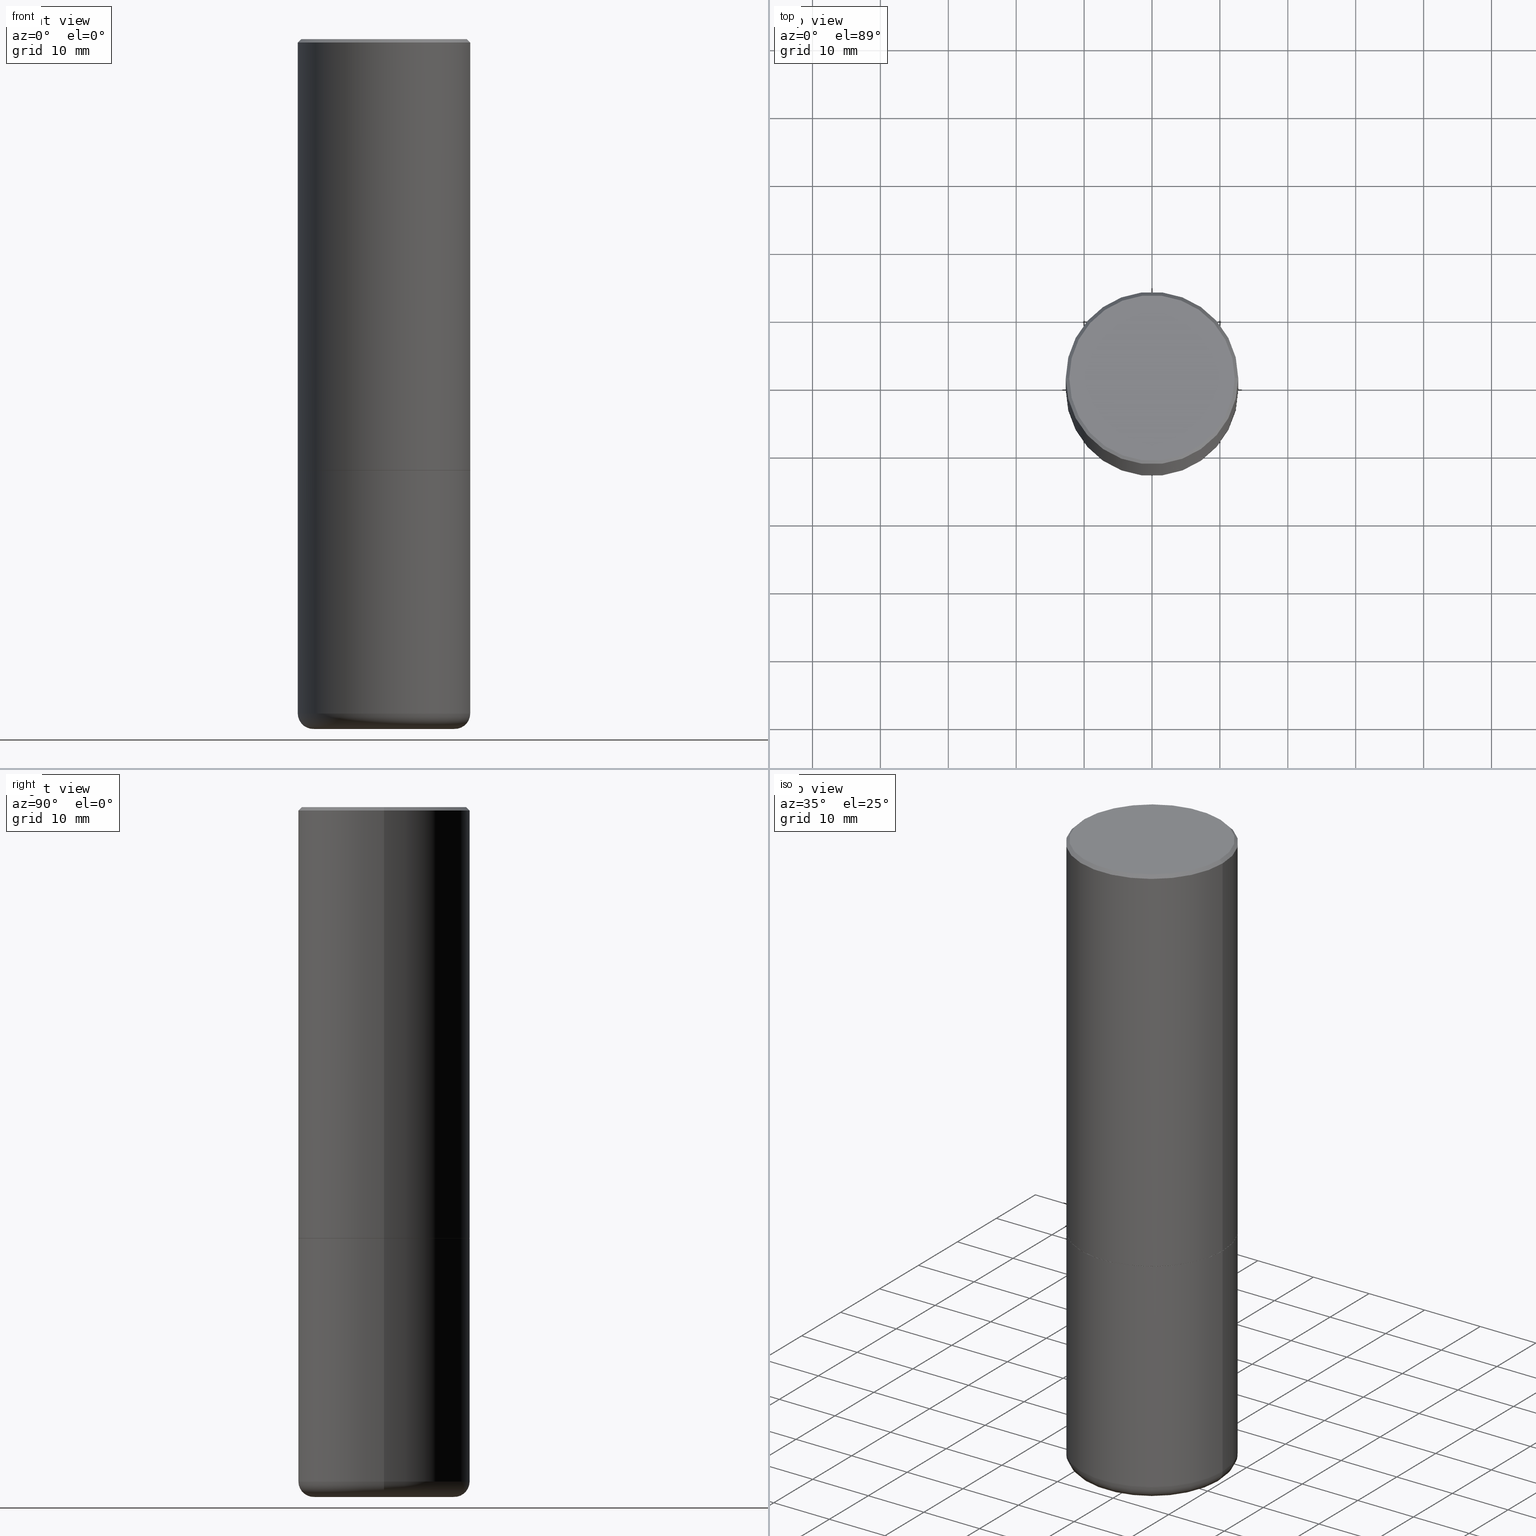
[diagram: canonical four-view strip — front | top / right | iso, engineering-drawing reading convention]
A machine part, canonical four-view strip (front | top / right | iso — engineering-drawing reading convention). The complete STEP part file that produces these views, byte-faithful:
ISO-10303-21;
HEADER;
FILE_DESCRIPTION (( 'STEP AP203' ),
    '1' );
FILE_NAME ('38111.STEP',
    '2023-03-22T20:19:02',
    ( '' ),
    ( '' ),
    'SwSTEP 2.0',
    'SolidWorks 2022',
    '' );
FILE_SCHEMA (( 'CONFIG_CONTROL_DESIGN' ));
ENDSEC;

DATA;
#1 = DIRECTION ( 'NONE',  ( 2.445468806185136597E-29, -3.491481338843145583E-15, -1.000000000000000000 ) ) ;
#2 = EDGE_LOOP ( 'NONE', ( #293, #30, #399, #130 ) ) ;
#3 = CARTESIAN_POINT ( 'NONE',  ( -0.4989999999999999991, -5.183095095664967388E-15, -2.500000000000000444 ) ) ;
#4 =( NAMED_UNIT ( * ) PLANE_ANGLE_UNIT ( ) SI_UNIT ( $, .RADIAN. ) );
#5 = ORIENTED_EDGE ( 'NONE', *, *, #191, .F. ) ;
#6 = DIRECTION ( 'NONE',  ( -0.9986295347545742773, 6.790662755453666100E-15, -0.05233595624293709697 ) ) ;
#7 = DIRECTION ( 'NONE',  ( -2.445468806185136597E-29, 3.491481338843145583E-15, 1.000000000000000000 ) ) ;
#8 = AXIS2_PLACEMENT_3D ( 'NONE', #404, #440, #202 ) ;
#9 = AXIS2_PLACEMENT_3D ( 'NONE', #413, #106, #182 ) ;
#10 = LOCAL_TIME ( 16, 19, 2.000000000000000000, #103 ) ;
#11 = CC_DESIGN_PERSON_AND_ORGANIZATION_ASSIGNMENT ( #25, #93, ( #259 ) ) ;
#12 = LENGTH_MEASURE_WITH_UNIT ( LENGTH_MEASURE( 0.02539999999999999897 ), #144 );
#13 = DIRECTION ( 'NONE',  ( -2.445468806185136597E-29, 3.491481338843145583E-15, 1.000000000000000000 ) ) ;
#14 = ORIENTED_EDGE ( 'NONE', *, *, #233, .F. ) ;
#15 = DIRECTION ( 'NONE',  ( -1.000000000000000000, 6.982962677686265922E-15, -4.876176775795935793E-29 ) ) ;
#16 = PERSON_AND_ORGANIZATION_ROLE ( 'classification_officer' ) ;
#17 = EDGE_CURVE ( 'NONE', #368, #83, #281, .T. ) ;
#18 = CIRCLE ( 'NONE', #258, 0.08999999999999999667 ) ;
#19 = LOCAL_TIME ( 16, 19, 2.000000000000000000, #226 ) ;
#20 = DIRECTION ( 'NONE',  ( 1.000000000000000000, -6.982962677686267499E-15, 4.876176775795936353E-29 ) ) ;
#21 = APPLICATION_CONTEXT ( 'configuration controlled 3d designs of mechanical parts and assemblies' ) ;
#22 = ORIENTED_EDGE ( 'NONE', *, *, #120, .F. ) ;
#23 = CARTESIAN_POINT ( 'NONE',  ( 0.4999999999999996669, -3.500078625662626318E-15, -0.02000000000000002123 ) ) ;
#24 = ORIENTED_EDGE ( 'NONE', *, *, #306, .F. ) ;
#25 = PERSON_AND_ORGANIZATION ( #160, #171 ) ;
#26 = AXIS2_PLACEMENT_3D ( 'NONE', #422, #13, #419 ) ;
#27 = LOCAL_TIME ( 16, 19, 2.000000000000000000, #434 ) ;
#28 = EDGE_CURVE ( 'NONE', #351, #343, #272, .T. ) ;
#29 = EDGE_CURVE ( 'NONE', #343, #314, #198, .T. ) ;
#30 = ORIENTED_EDGE ( 'NONE', *, *, #120, .T. ) ;
#31 = ADVANCED_FACE ( 'NONE', ( #335 ), #38, .F. ) ;
#32 = ORIENTED_EDGE ( 'NONE', *, *, #29, .T. ) ;
#33 = CLOSED_SHELL ( 'NONE', ( #229, #430, #166, #423, #361, #340, #31 ) ) ;
#34 = CIRCLE ( 'NONE', #294, 0.4052897639381357053 ) ;
#35 = EDGE_LOOP ( 'NONE', ( #266, #71, #69, #119 ) ) ;
#36 = DIRECTION ( 'NONE',  ( -2.445468806185136877E-29, 3.491481338843145188E-15, 1.000000000000000000 ) ) ;
#37 = DIRECTION ( 'NONE',  ( -1.000000000000000000, 6.982962677686266711E-15, 0.000000000000000000 ) ) ;
#38 = CONICAL_SURFACE ( 'NONE', #358, 751.2258538476644389, 1.518436449235073482 ) ;
#39 = DIRECTION ( 'NONE',  ( 1.000000000000000000, -6.982962677686265133E-15, 0.000000000000000000 ) ) ;
#40 = CARTESIAN_POINT ( 'NONE',  ( -3.131554243005659264E-46, 4.471029511141341874E-32, 1.280553747030123384E-17 ) ) ;
#41 = DIRECTION ( 'NONE',  ( -0.7071067811865467956, 2.468850131082249172E-15, -0.7071067811865482389 ) ) ;
#42 = ORIENTED_EDGE ( 'NONE', *, *, #28, .T. ) ;
#43 = ORIENTED_EDGE ( 'NONE', *, *, #426, .F. ) ;
#44 = CARTESIAN_POINT ( 'NONE',  ( 6.113672015462842613E-29, -8.728703347107866520E-15, -2.500000000000000444 ) ) ;
#45 = CARTESIAN_POINT ( 'NONE',  ( -0.4999999999999996669, 3.421651712066268085E-15, -0.02000000000000002123 ) ) ;
#46 = LINE ( 'NONE', #316, #134 ) ;
#47 = DATE_TIME_ROLE ( 'creation_date' ) ;
#48 = DIRECTION ( 'NONE',  ( 0.9986295347545742773, -7.033825938271998700E-15, -0.05233595624293709697 ) ) ;
#49 =( CONVERSION_BASED_UNIT ( 'INCH', #12 ) LENGTH_UNIT ( ) NAMED_UNIT ( #236 ) );
#50 = ORIENTED_EDGE ( 'NONE', *, *, #128, .F. ) ;
#51 = AXIS2_PLACEMENT_3D ( 'NONE', #325, #261, #391 ) ;
#52 = LINE ( 'NONE', #222, #384 ) ;
#53 = CARTESIAN_POINT ( 'NONE',  ( 0.4099999999999999756, -1.651513737857276136E-14, -3.910123341872087988 ) ) ;
#54 = DIRECTION ( 'NONE',  ( -2.445468806185136877E-29, 3.491481338843145188E-15, 1.000000000000000000 ) ) ;
#55 = CYLINDRICAL_SURFACE ( 'NONE', #26, 0.5000000000000000000 ) ;
#56 = DIRECTION ( 'NONE',  ( 1.000000000000000000, -6.982962677686266711E-15, 0.000000000000000000 ) ) ;
#57 = ORIENTED_EDGE ( 'NONE', *, *, #245, .F. ) ;
#58 = CARTESIAN_POINT ( 'NONE',  ( 2.116410433118042117E-18, -1.389176511687253156E-14, -3.978759663505856636 ) ) ;
#59 = AXIS2_PLACEMENT_3D ( 'NONE', #276, #308, #37 ) ;
#60 = LINE ( 'NONE', #23, #273 ) ;
#61 = PERSON_AND_ORGANIZATION ( #160, #171 ) ;
#62 = VECTOR ( 'NONE', #48, 39.37007874015748143 ) ;
#63 = EDGE_CURVE ( 'NONE', #416, #369, #313, .T. ) ;
#64 = ADVANCED_FACE ( 'NONE', ( #129 ), #82, .T. ) ;
#65 = EDGE_CURVE ( 'NONE', #311, #314, #133, .T. ) ;
#66 = AXIS2_PLACEMENT_3D ( 'NONE', #370, #257, #15 ) ;
#67 = APPROVAL_PERSON_ORGANIZATION ( #173, #197, #186 ) ;
#68 = CARTESIAN_POINT ( 'NONE',  ( 9.731410525917688142E-29, -1.388964870643951085E-14, -3.978759663505856636 ) ) ;
#69 = ORIENTED_EDGE ( 'NONE', *, *, #29, .F. ) ;
#70 = ORIENTED_EDGE ( 'NONE', *, *, #233, .T. ) ;
#71 = ORIENTED_EDGE ( 'NONE', *, *, #65, .T. ) ;
#72 = CARTESIAN_POINT ( 'NONE',  ( 0.5000000000000000000, -1.221669320461215371E-14, -2.499000000000000110 ) ) ;
#73 = ORIENTED_EDGE ( 'NONE', *, *, #124, .T. ) ;
#74 = AXIS2_PLACEMENT_3D ( 'NONE', #116, #415, #139 ) ;
#75 = COORDINATED_UNIVERSAL_TIME_OFFSET ( 5, 0, .BEHIND. ) ;
#76 = DIRECTION ( 'NONE',  ( 2.445468806185136597E-29, -3.491481338843145583E-15, -1.000000000000000000 ) ) ;
#77 = CC_DESIGN_PERSON_AND_ORGANIZATION_ASSIGNMENT ( #288, #382, ( #363 ) ) ;
#78 = APPROVAL_STATUS ( 'not_yet_approved' ) ;
#79 = ORIENTED_EDGE ( 'NONE', *, *, #203, .F. ) ;
#80 = DIRECTION ( 'NONE',  ( -1.000000000000000000, 6.982962677686266711E-15, 0.000000000000000000 ) ) ;
#81 = MECHANICAL_CONTEXT ( 'NONE', #21, 'mechanical' ) ;
#82 = CONICAL_SURFACE ( 'NONE', #59, 0.4999999999999996669, 0.7853981633974472798 ) ;
#83 = VERTEX_POINT ( 'NONE', #99 ) ;
#84 = CYLINDRICAL_SURFACE ( 'NONE', #9, 0.4999999999999998335 ) ;
#85 = DIRECTION ( 'NONE',  ( 1.000000000000000000, -6.982962677686269077E-15, 0.000000000000000000 ) ) ;
#86 = VERTEX_POINT ( 'NONE', #246 ) ;
#87 = DIRECTION ( 'NONE',  ( -2.445468806185136597E-29, 3.491481338843145583E-15, 1.000000000000000000 ) ) ;
#88 = ADVANCED_FACE ( 'NONE', ( #366 ), #408, .F. ) ;
#89 = DATE_TIME_ROLE ( 'classification_date' ) ;
#90 = AXIS2_PLACEMENT_3D ( 'NONE', #40, #439, #437 ) ;
#91 = VERTEX_POINT ( 'NONE', #354 ) ;
#92 = DIRECTION ( 'NONE',  ( 1.000000000000000000, -6.982962677686266711E-15, 0.000000000000000000 ) ) ;
#93 = PERSON_AND_ORGANIZATION_ROLE ( 'design_supplier' ) ;
#94 = VECTOR ( 'NONE', #274, 39.37007874015748143 ) ;
#95 = LOCAL_TIME ( 16, 19, 2.000000000000000000, #75 ) ;
#96 = VERTEX_POINT ( 'NONE', #178 ) ;
#97 = AXIS2_PLACEMENT_3D ( 'NONE', #167, #337, #195 ) ;
#98 = APPROVAL ( #254, 'UNSPECIFIED' ) ;
#99 = CARTESIAN_POINT ( 'NONE',  ( -0.4799999999999996492, 3.386736898677836830E-15, 1.280553747027767124E-17 ) ) ;
#100 = ADVANCED_FACE ( 'NONE', ( #290 ), #165, .T. ) ;
#101 = EDGE_CURVE ( 'NONE', #387, #96, #105, .T. ) ;
#102 = ORIENTED_EDGE ( 'NONE', *, *, #299, .T. ) ;
#103 = COORDINATED_UNIVERSAL_TIME_OFFSET ( 5, 0, .BEHIND. ) ;
#104 = CARTESIAN_POINT ( 'NONE',  ( 4.890937612370278413E-31, -6.982962677686297772E-17, -0.02000000000000002123 ) ) ;
#105 = CIRCLE ( 'NONE', #237, 0.4052897639381357053 ) ;
#106 = DIRECTION ( 'NONE',  ( -2.445468806185136597E-29, 3.491481338843145583E-15, 1.000000000000000000 ) ) ;
#107 = LINE ( 'NONE', #323, #152 ) ;
#108 = DIRECTION ( 'NONE',  ( 1.000000000000000000, -6.982962677686266711E-15, 0.000000000000000000 ) ) ;
#109 = EDGE_LOOP ( 'NONE', ( #248, #224, #287, #57 ) ) ;
#110 = DATE_AND_TIME ( #417, #154 ) ;
#111 = DIRECTION ( 'NONE',  ( -1.000000000000000000, 6.982962677686265922E-15, 0.000000000000000000 ) ) ;
#112 = FACE_OUTER_BOUND ( 'NONE', #185, .T. ) ;
#113 = VECTOR ( 'NONE', #41, 39.37007874015748143 ) ;
#114 = CIRCLE ( 'NONE', #97, 0.5000000000000000000 ) ;
#115 = AXIS2_PLACEMENT_3D ( 'NONE', #135, #252, #211 ) ;
#116 = CARTESIAN_POINT ( 'NONE',  ( 6.113672015462842613E-29, -8.728703347107864943E-15, -2.500000000000000000 ) ) ;
#117 = ORIENTED_EDGE ( 'NONE', *, *, #191, .T. ) ;
#118 = DATE_AND_TIME ( #431, #27 ) ;
#119 = ORIENTED_EDGE ( 'NONE', *, *, #28, .F. ) ;
#120 = EDGE_CURVE ( 'NONE', #387, #416, #18, .T. ) ;
#121 = EDGE_LOOP ( 'NONE', ( #79, #379, #172 ) ) ;
#122 = PERSON_AND_ORGANIZATION_ROLE ( 'creator' ) ;
#123 = CARTESIAN_POINT ( 'NONE',  ( 6.113672015462842613E-29, -8.728703347107864943E-15, -2.500000000000000000 ) ) ;
#124 = EDGE_CURVE ( 'NONE', #96, #86, #330, .T. ) ;
#125 = VECTOR ( 'NONE', #328, 39.37007874015748143 ) ;
#126 = MANIFOLD_SOLID_BREP ( 'Body-Move/Copy2[2]', #141 ) ;
#127 = SECURITY_CLASSIFICATION ( '', '', #360 ) ;
#128 = EDGE_CURVE ( 'NONE', #314, #155, #279, .T. ) ;
#129 = FACE_OUTER_BOUND ( 'NONE', #284, .T. ) ;
#130 = ORIENTED_EDGE ( 'NONE', *, *, #124, .F. ) ;
#131 = APPROVAL ( #153, 'UNSPECIFIED' ) ;
#132 = ORIENTED_EDGE ( 'NONE', *, *, #359, .F. ) ;
#133 = LINE ( 'NONE', #3, #94 ) ;
#134 = VECTOR ( 'NONE', #54, 39.37007874015748143 ) ;
#135 = CARTESIAN_POINT ( 'NONE',  ( 3.491481338843194098E-15, 0.4999999999999912292, -2.500000000000001776 ) ) ;
#136 = EDGE_LOOP ( 'NONE', ( #309, #70, #42, #326 ) ) ;
#137 = FACE_OUTER_BOUND ( 'NONE', #2, .T. ) ;
#138 = EDGE_LOOP ( 'NONE', ( #32, #262, #175, #132 ) ) ;
#139 = DIRECTION ( 'NONE',  ( 1.000000000000000000, -6.982962677686265922E-15, 4.876176775795935793E-29 ) ) ;
#140 = ORIENTED_EDGE ( 'NONE', *, *, #17, .T. ) ;
#141 = CLOSED_SHELL ( 'NONE', ( #253, #383, #64, #100, #267, #225, #184, #88 ) ) ;
#142 = AXIS2_PLACEMENT_3D ( 'NONE', #148, #285, #111 ) ;
#143 = EDGE_CURVE ( 'NONE', #86, #91, #107, .T. ) ;
#144 =( LENGTH_UNIT ( ) NAMED_UNIT ( * ) SI_UNIT ( $, .METRE. ) );
#145 = AXIS2_PLACEMENT_3D ( 'NONE', #428, #161, #56 ) ;
#146 = EDGE_LOOP ( 'NONE', ( #204, #214, #163 ) ) ;
#147 = COORDINATED_UNIVERSAL_TIME_OFFSET ( 5, 0, .BEHIND. ) ;
#148 = CARTESIAN_POINT ( 'NONE',  ( 1.060082321005189927E-27, -1.513516603469176358E-13, -43.34883840366333629 ) ) ;
#149 = EDGE_LOOP ( 'NONE', ( #389, #5, #395, #102 ) ) ;
#150 = DIRECTION ( 'NONE',  ( 1.000000000000000000, -6.982962677686269077E-15, 0.000000000000000000 ) ) ;
#151 = DIRECTION ( 'NONE',  ( 1.000000000000000000, -6.982962677686269077E-15, 0.000000000000000000 ) ) ;
#152 = VECTOR ( 'NONE', #292, 39.37007874015748143 ) ;
#153 = APPROVAL_STATUS ( 'not_yet_approved' ) ;
#154 = LOCAL_TIME ( 16, 19, 2.000000000000000000, #147 ) ;
#155 = VERTEX_POINT ( 'NONE', #346 ) ;
#156 = CARTESIAN_POINT ( 'NONE',  ( 4.890937612370278413E-31, -6.982962677686297772E-17, -0.02000000000000002123 ) ) ;
#157 = ORIENTED_EDGE ( 'NONE', *, *, #359, .T. ) ;
#158 = PERSON_AND_ORGANIZATION ( #160, #171 ) ;
#159 = EDGE_CURVE ( 'NONE', #351, #311, #414, .T. ) ;
#160 = PERSON ( 'UNSPECIFIED', 'UNSPECIFIED', 'UNSPECIFIED', ('UNSPECIFIED'), ('UNSPECIFIED'), ('UNSPECIFIED') ) ;
#161 = DIRECTION ( 'NONE',  ( -2.445468806185136597E-29, 3.491481338843145583E-15, 1.000000000000000000 ) ) ;
#162 = UNCERTAINTY_MEASURE_WITH_UNIT (LENGTH_MEASURE( 1.000000000000000082E-05 ), #49, 'distance_accuracy_value', 'NONE');
#163 = ORIENTED_EDGE ( 'NONE', *, *, #101, .F. ) ;
#164 = APPROVAL_ROLE ( '' ) ;
#165 = CONICAL_SURFACE ( 'NONE', #304, 0.4999999999999996669, 0.7853981633974472798 ) ;
#166 = ADVANCED_FACE ( 'NONE', ( #385 ), #55, .T. ) ;
#167 = CARTESIAN_POINT ( 'NONE',  ( 6.113672015462842613E-29, -8.728703347107864943E-15, -2.500000000000000000 ) ) ;
#168 = DIRECTION ( 'NONE',  ( 0.7071067811864267805, -2.468850131080992517E-15, 0.7071067811866682540 ) ) ;
#169 = CARTESIAN_POINT ( 'NONE',  ( -0.5000000000000000000, -8.448070674724403070E-16, -2.499000000000000110 ) ) ;
#170 = CONICAL_SURFACE ( 'NONE', #142, 751.2258538476644389, 1.518436449235073482 ) ;
#171 = ORGANIZATION ( 'UNSPECIFIED', 'UNSPECIFIED', '' ) ;
#172 = ORIENTED_EDGE ( 'NONE', *, *, #199, .F. ) ;
#173 = PERSON_AND_ORGANIZATION ( #160, #171 ) ;
#174 = DIRECTION ( 'NONE',  ( -1.000000000000000000, 6.982962677686265922E-15, 0.000000000000000000 ) ) ;
#175 = ORIENTED_EDGE ( 'NONE', *, *, #192, .F. ) ;
#176 = CARTESIAN_POINT ( 'NONE',  ( 0.000000000000000000, 0.000000000000000000, 0.000000000000000000 ) ) ;
#177 = DATE_AND_TIME ( #212, #95 ) ;
#178 = CARTESIAN_POINT ( 'NONE',  ( 0.4052897639381357053, -1.679604865060086105E-14, -3.999999999999999556 ) ) ;
#179 = CARTESIAN_POINT ( 'NONE',  ( 9.781875224740545266E-29, -1.396592535537258075E-14, -3.999999999999999556 ) ) ;
#180 = VECTOR ( 'NONE', #36, 39.37007874015748143 ) ;
#181 = ORIENTED_EDGE ( 'NONE', *, *, #63, .T. ) ;
#182 = DIRECTION ( 'NONE',  ( 1.000000000000000000, -6.982962677686267499E-15, 4.876176775795936353E-29 ) ) ;
#183 = CARTESIAN_POINT ( 'NONE',  ( -0.4999999999999998335, 3.552713678800499746E-15, -2.459467545127452330E-29 ) ) ;
#184 = ADVANCED_FACE ( 'NONE', ( #112 ), #355, .F. ) ;
#185 = EDGE_LOOP ( 'NONE', ( #277, #14 ) ) ;
#186 = APPROVAL_ROLE ( '' ) ;
#187 = CARTESIAN_POINT ( 'NONE',  ( -3.131554243005659264E-46, 4.471029511141341874E-32, 1.280553747030123384E-17 ) ) ;
#188 = FACE_OUTER_BOUND ( 'NONE', #329, .T. ) ;
#189 = DIRECTION ( 'NONE',  ( -6.982962677686266711E-15, -1.000000000000000000, 3.491481338843145583E-15 ) ) ;
#190 = DIRECTION ( 'NONE',  ( -2.445468806185136597E-29, 3.491481338843145583E-15, 1.000000000000000000 ) ) ;
#191 = EDGE_CURVE ( 'NONE', #83, #368, #432, .T. ) ;
#192 = EDGE_CURVE ( 'NONE', #433, #155, #400, .T. ) ;
#193 = FACE_OUTER_BOUND ( 'NONE', #35, .T. ) ;
#194 = APPLICATION_CONTEXT ( 'configuration controlled 3d designs of mechanical parts and assemblies' ) ;
#195 = DIRECTION ( 'NONE',  ( 1.000000000000000000, -6.982962677686269077E-15, 0.000000000000000000 ) ) ;
#196 = CARTESIAN_POINT ( 'NONE',  ( 1.060082321005189927E-27, -1.513516603469176358E-13, -43.34883840366333629 ) ) ;
#197 = APPROVAL ( #78, 'UNSPECIFIED' ) ;
#198 = CIRCLE ( 'NONE', #8, 0.5000000000000000000 ) ;
#199 = EDGE_CURVE ( 'NONE', #96, #387, #34, .T. ) ;
#200 = TOROIDAL_SURFACE ( 'NONE', #353, 0.4099999999999999756, 0.08999999999999998279 ) ;
#201 = CC_DESIGN_APPROVAL ( #98, ( #259 ) ) ;
#202 = DIRECTION ( 'NONE',  ( 1.000000000000000000, -6.982962677686265133E-15, 0.000000000000000000 ) ) ;
#203 = EDGE_CURVE ( 'NONE', #344, #96, #227, .T. ) ;
#204 = ORIENTED_EDGE ( 'NONE', *, *, #364, .F. ) ;
#205 = CARTESIAN_POINT ( 'NONE',  ( 0.000000000000000000, 0.000000000000000000, 0.000000000000000000 ) ) ;
#206 = CARTESIAN_POINT ( 'NONE',  ( 9.562084660884571289E-29, -1.365212268072139138E-14, -3.910123341872087988 ) ) ;
#207 = AXIS2_PLACEMENT_3D ( 'NONE', #407, #216, #220 ) ;
#208 = CIRCLE ( 'NONE', #397, 0.5000000000000000000 ) ;
#209 = CC_DESIGN_DATE_AND_TIME_ASSIGNMENT ( #302, #89, ( #127 ) ) ;
#210 = APPLICATION_PROTOCOL_DEFINITION ( 'international standard', 'config_control_design', 1994, #194 ) ;
#211 = DIRECTION ( 'NONE',  ( -1.000000000000000000, 6.982962677686265922E-15, -4.876176775795935793E-29 ) ) ;
#212 = CALENDAR_DATE ( 2023, 22, 3 ) ;
#213 = CARTESIAN_POINT ( 'NONE',  ( 9.781875224740545266E-29, -1.396592535537258075E-14, -3.999999999999999556 ) ) ;
#214 = ORIENTED_EDGE ( 'NONE', *, *, #203, .T. ) ;
#215 = CARTESIAN_POINT ( 'NONE',  ( -0.4099999999999999756, -1.073889746410498118E-14, -3.910123341872087988 ) ) ;
#216 = DIRECTION ( 'NONE',  ( -2.445468806185136597E-29, 3.491481338843145583E-15, 1.000000000000000000 ) ) ;
#217 = ORIENTED_EDGE ( 'NONE', *, *, #17, .F. ) ;
#218 = DIRECTION ( 'NONE',  ( -2.445468806185136597E-29, 3.491481338843145583E-15, 1.000000000000000000 ) ) ;
#219 = DIRECTION ( 'NONE',  ( 7.105427357601001859E-15, 1.000000000000000000, -3.491481338843145583E-15 ) ) ;
#220 = DIRECTION ( 'NONE',  ( 1.000000000000000000, -6.982962677686266711E-15, 4.883557194083113462E-29 ) ) ;
#221 = CC_DESIGN_APPROVAL ( #131, ( #127 ) ) ;
#222 = CARTESIAN_POINT ( 'NONE',  ( -2.116410432923443459E-18, -1.389176511687253156E-14, -3.978759663505856636 ) ) ;
#223 = DIRECTION ( 'NONE',  ( -2.445468806185136597E-29, 3.491481338843145583E-15, 1.000000000000000000 ) ) ;
#224 = ORIENTED_EDGE ( 'NONE', *, *, #438, .T. ) ;
#225 = ADVANCED_FACE ( 'NONE', ( #374 ), #310, .T. ) ;
#226 = COORDINATED_UNIVERSAL_TIME_OFFSET ( 5, 0, .BEHIND. ) ;
#227 = LINE ( 'NONE', #58, #62 ) ;
#228 = ORIENTED_EDGE ( 'NONE', *, *, #245, .T. ) ;
#229 = ADVANCED_FACE ( 'NONE', ( #319 ), #170, .F. ) ;
#230 = CALENDAR_DATE ( 2023, 22, 3 ) ;
#231 = PRODUCT_RELATED_PRODUCT_CATEGORY ( 'detail', '', ( #321 ) ) ;
#232 = AXIS2_PLACEMENT_3D ( 'NONE', #349, #223, #282 ) ;
#233 = EDGE_CURVE ( 'NONE', #311, #351, #333, .T. ) ;
#234 = DIRECTION ( 'NONE',  ( 1.000000000000000000, -6.982962677686269077E-15, 0.000000000000000000 ) ) ;
#235 = CC_DESIGN_SECURITY_CLASSIFICATION ( #127, ( #259 ) ) ;
#236 = DIMENSIONAL_EXPONENTS ( 1.000000000000000000, 0.000000000000000000, 0.000000000000000000, 0.000000000000000000, 0.000000000000000000, 0.000000000000000000, 0.000000000000000000 ) ;
#237 = AXIS2_PLACEMENT_3D ( 'NONE', #213, #7, #151 ) ;
#238 = APPROVAL_PERSON_ORGANIZATION ( #61, #131, #164 ) ;
#239 = EDGE_CURVE ( 'NONE', #368, #433, #60, .T. ) ;
#240 = CARTESIAN_POINT ( 'NONE',  ( 0.4989999999999999991, -1.221320172327331386E-14, -2.500000000000000444 ) ) ;
#241 = ORIENTED_EDGE ( 'NONE', *, *, #331, .T. ) ;
#242 = DIRECTION ( 'NONE',  ( 1.000000000000000000, -6.982962677686266711E-15, 4.883557194083113462E-29 ) ) ;
#243 = CONICAL_SURFACE ( 'NONE', #145, 0.4989999999999999991, 0.7853981633972775267 ) ;
#244 = CARTESIAN_POINT ( 'NONE',  ( -0.5000000000000000000, 3.552713678800500929E-15, -2.459467545127452891E-29 ) ) ;
#245 = EDGE_CURVE ( 'NONE', #369, #91, #421, .T. ) ;
#246 = CARTESIAN_POINT ( 'NONE',  ( 0.5000000000000000000, -1.714360401956452473E-14, -3.910123341872087988 ) ) ;
#247 = CARTESIAN_POINT ( 'NONE',  ( 6.111226546656657010E-29, -8.725211865769021935E-15, -2.499000000000000110 ) ) ;
#248 = ORIENTED_EDGE ( 'NONE', *, *, #63, .F. ) ;
#249 = DIRECTION ( 'NONE',  ( 1.000000000000000000, -6.982962677686266711E-15, 0.000000000000000000 ) ) ;
#250 = ORIENTED_EDGE ( 'NONE', *, *, #299, .F. ) ;
#251 = DIRECTION ( 'NONE',  ( -2.445468806185136597E-29, 3.491481338843145583E-15, 1.000000000000000000 ) ) ;
#252 = DIRECTION ( 'NONE',  ( 2.438088387897960049E-29, -3.491481338843145188E-15, -1.000000000000000000 ) ) ;
#253 = ADVANCED_FACE ( 'NONE', ( #193 ), #243, .T. ) ;
#254 = APPROVAL_STATUS ( 'not_yet_approved' ) ;
#255 = DIRECTION ( 'NONE',  ( -2.445468806185136597E-29, 3.491481338843145583E-15, 1.000000000000000000 ) ) ;
#256 = DIRECTION ( 'NONE',  ( -1.000000000000000000, 7.105427357600990815E-15, 0.000000000000000000 ) ) ;
#257 = DIRECTION ( 'NONE',  ( 2.438088387897960049E-29, -3.491481338843145188E-15, -1.000000000000000000 ) ) ;
#258 = AXIS2_PLACEMENT_3D ( 'NONE', #215, #219, #256 ) ;
#259 = PRODUCT_DEFINITION_FORMATION_WITH_SPECIFIED_SOURCE ( 'ANY', '', #321, .NOT_KNOWN. ) ;
#260 = DIRECTION ( 'NONE',  ( -2.445468806185136597E-29, 3.491481338843145583E-15, 1.000000000000000000 ) ) ;
#261 = DIRECTION ( 'NONE',  ( -2.445468806185136597E-29, 3.491481338843145583E-15, 1.000000000000000000 ) ) ;
#262 = ORIENTED_EDGE ( 'NONE', *, *, #128, .T. ) ;
#263 = APPROVAL_DATE_TIME ( #118, #131 ) ;
#264 = AXIS2_PLACEMENT_3D ( 'NONE', #176, #260, #380 ) ;
#265 = AXIS2_PLACEMENT_3D ( 'NONE', #205, #338, #378 ) ;
#266 = ORIENTED_EDGE ( 'NONE', *, *, #159, .T. ) ;
#267 = ADVANCED_FACE ( 'NONE', ( #188 ), #425, .T. ) ;
#268 = AXIS2_PLACEMENT_3D ( 'NONE', #187, #251, #411 ) ;
#269 =( GEOMETRIC_REPRESENTATION_CONTEXT ( 3 ) GLOBAL_UNCERTAINTY_ASSIGNED_CONTEXT ( ( #162 ) ) GLOBAL_UNIT_ASSIGNED_CONTEXT ( ( #49, #4, #322 ) ) REPRESENTATION_CONTEXT ( 'NONE', 'WORKASPACE' ) );
#270 = CC_DESIGN_PERSON_AND_ORGANIZATION_ASSIGNMENT ( #390, #16, ( #127 ) ) ;
#271 = CARTESIAN_POINT ( 'NONE',  ( -0.4989999999999999991, -5.177796641316744197E-15, -2.500000000000000444 ) ) ;
#272 = LINE ( 'NONE', #240, #396 ) ;
#273 = VECTOR ( 'NONE', #291, 39.37007874015748143 ) ;
#274 = DIRECTION ( 'NONE',  ( -0.7071067811864267805, 7.493145998869918709E-15, 0.7071067811866682540 ) ) ;
#275 = CARTESIAN_POINT ( 'NONE',  ( 9.562084660884571289E-29, -1.365212268072139138E-14, -3.910123341872087988 ) ) ;
#276 = CARTESIAN_POINT ( 'NONE',  ( 4.890937612370278413E-31, -6.982962677686297772E-17, -0.02000000000000002123 ) ) ;
#277 = ORIENTED_EDGE ( 'NONE', *, *, #159, .F. ) ;
#278 = APPROVAL_DATE_TIME ( #372, #197 ) ;
#279 = LINE ( 'NONE', #183, #125 ) ;
#280 = FACE_OUTER_BOUND ( 'NONE', #138, .T. ) ;
#281 = CIRCLE ( 'NONE', #90, 0.4799999999999996492 ) ;
#282 = DIRECTION ( 'NONE',  ( 1.000000000000000000, -6.982962677686266711E-15, 0.000000000000000000 ) ) ;
#283 = APPLICATION_PROTOCOL_DEFINITION ( 'international standard', 'config_control_design', 1994, #21 ) ;
#284 = EDGE_LOOP ( 'NONE', ( #217, #301, #392, #43 ) ) ;
#285 = DIRECTION ( 'NONE',  ( 2.445468806185136597E-29, -3.491481338843145583E-15, -1.000000000000000000 ) ) ;
#286 = PLANE ( 'NONE',  #115 ) ;
#287 = ORIENTED_EDGE ( 'NONE', *, *, #143, .T. ) ;
#288 = PERSON_AND_ORGANIZATION ( #160, #171 ) ;
#289 = PRODUCT_DEFINITION_SHAPE ( 'NONE', 'NONE',  #363 ) ;
#290 = FACE_OUTER_BOUND ( 'NONE', #149, .T. ) ;
#291 = DIRECTION ( 'NONE',  ( 0.7071067811865467956, -7.319954787623254468E-15, -0.7071067811865482389 ) ) ;
#292 = DIRECTION ( 'NONE',  ( -2.445468806185136877E-29, 3.491481338843145188E-15, 1.000000000000000000 ) ) ;
#293 = ORIENTED_EDGE ( 'NONE', *, *, #199, .T. ) ;
#294 = AXIS2_PLACEMENT_3D ( 'NONE', #179, #418, #85 ) ;
#295 = CARTESIAN_POINT ( 'NONE',  ( -0.4052897639381357053, -1.059278869042589352E-14, -3.999999999999999556 ) ) ;
#296 = EDGE_LOOP ( 'NONE', ( #117, #140 ) ) ;
#297 = APPROVAL_DATE_TIME ( #110, #98 ) ;
#298 = CC_DESIGN_PERSON_AND_ORGANIZATION_ASSIGNMENT ( #307, #336, ( #321 ) ) ;
#299 = EDGE_CURVE ( 'NONE', #155, #433, #436, .T. ) ;
#300 = AXIS2_PLACEMENT_3D ( 'NONE', #393, #190, #20 ) ;
#301 = ORIENTED_EDGE ( 'NONE', *, *, #239, .T. ) ;
#302 = DATE_AND_TIME ( #230, #19 ) ;
#303 = DESIGN_CONTEXT ( 'detailed design', #194, 'design' ) ;
#304 = AXIS2_PLACEMENT_3D ( 'NONE', #104, #76, #80 ) ;
#305 = CIRCLE ( 'NONE', #401, 0.5000000000000000000 ) ;
#306 = EDGE_CURVE ( 'NONE', #91, #369, #114, .T. ) ;
#307 = PERSON_AND_ORGANIZATION ( #160, #171 ) ;
#308 = DIRECTION ( 'NONE',  ( 2.445468806185136597E-29, -3.491481338843145583E-15, -1.000000000000000000 ) ) ;
#309 = ORIENTED_EDGE ( 'NONE', *, *, #65, .F. ) ;
#310 = CONICAL_SURFACE ( 'NONE', #332, 0.4989999999999999991, 0.7853981633972775267 ) ;
#311 = VERTEX_POINT ( 'NONE', #271 ) ;
#312 = DIRECTION ( 'NONE',  ( -2.445468806185136597E-29, 3.491481338843145583E-15, 1.000000000000000000 ) ) ;
#313 = LINE ( 'NONE', #244, #180 ) ;
#314 = VERTEX_POINT ( 'NONE', #169 ) ;
#315 = CYLINDRICAL_SURFACE ( 'NONE', #264, 0.5000000000000000000 ) ;
#316 = CARTESIAN_POINT ( 'NONE',  ( 0.4999999999999998335, -3.491481338843132566E-15, 2.438088387897967336E-29 ) ) ;
#317 = APPROVAL_ROLE ( '' ) ;
#318 = AXIS2_PLACEMENT_3D ( 'NONE', #53, #189, #150 ) ;
#319 = FACE_OUTER_BOUND ( 'NONE', #146, .T. ) ;
#320 = APPROVAL_PERSON_ORGANIZATION ( #348, #98, #317 ) ;
#321 = PRODUCT ( '38111', '38111', '', ( #81 ) ) ;
#322 =( NAMED_UNIT ( * ) SI_UNIT ( $, .STERADIAN. ) SOLID_ANGLE_UNIT ( ) );
#323 = CARTESIAN_POINT ( 'NONE',  ( 0.5000000000000000000, -3.491481338843133355E-15, 2.438088387897967896E-29 ) ) ;
#324 = CARTESIAN_POINT ( 'NONE',  ( 0.4799999999999996492, -3.396558832296479338E-15, 1.280553747032483033E-17 ) ) ;
#325 = CARTESIAN_POINT ( 'NONE',  ( 4.890937612370278413E-31, -6.982962677686297772E-17, -0.02000000000000002123 ) ) ;
#326 = ORIENTED_EDGE ( 'NONE', *, *, #331, .F. ) ;
#327 = DIRECTION ( 'NONE',  ( 1.000000000000000000, -6.982962677686266711E-15, 0.000000000000000000 ) ) ;
#328 = DIRECTION ( 'NONE',  ( -2.445468806185136877E-29, 3.491481338843145188E-15, 1.000000000000000000 ) ) ;
#329 = EDGE_LOOP ( 'NONE', ( #50, #241, #157, #250 ) ) ;
#330 = CIRCLE ( 'NONE', #318, 0.08999999999999999667 ) ;
#331 = EDGE_CURVE ( 'NONE', #314, #343, #208, .T. ) ;
#332 = AXIS2_PLACEMENT_3D ( 'NONE', #44, #255, #375 ) ;
#333 = CIRCLE ( 'NONE', #373, 0.4989999999999999991 ) ;
#334 = AXIS2_PLACEMENT_3D ( 'NONE', #156, #218, #327 ) ;
#335 = FACE_OUTER_BOUND ( 'NONE', #121, .T. ) ;
#336 = PERSON_AND_ORGANIZATION_ROLE ( 'design_owner' ) ;
#337 = DIRECTION ( 'NONE',  ( -2.445468806185136597E-29, 3.491481338843145583E-15, 1.000000000000000000 ) ) ;
#338 = DIRECTION ( 'NONE',  ( 0.000000000000000000, 0.000000000000000000, 1.000000000000000000 ) ) ;
#339 = CC_DESIGN_APPROVAL ( #197, ( #363 ) ) ;
#340 = ADVANCED_FACE ( 'NONE', ( #365 ), #200, .T. ) ;
#341 = CALENDAR_DATE ( 2023, 22, 3 ) ;
#342 = AXIS2_PLACEMENT_3D ( 'NONE', #123, #398, #234 ) ;
#343 = VERTEX_POINT ( 'NONE', #72 ) ;
#344 = VERTEX_POINT ( 'NONE', #68 ) ;
#345 = CARTESIAN_POINT ( 'NONE',  ( 0.4989999999999999991, -1.221320172327331386E-14, -2.500000000000000444 ) ) ;
#346 = CARTESIAN_POINT ( 'NONE',  ( -0.4999999999999996669, 3.421651712066268085E-15, -0.02000000000000002123 ) ) ;
#347 = DIRECTION ( 'NONE',  ( -2.445468806185136597E-29, 3.491481338843145583E-15, 1.000000000000000000 ) ) ;
#348 = PERSON_AND_ORGANIZATION ( #160, #171 ) ;
#349 = CARTESIAN_POINT ( 'NONE',  ( 6.113672015462842613E-29, -8.728703347107866520E-15, -2.500000000000000444 ) ) ;
#350 = CARTESIAN_POINT ( 'NONE',  ( -0.5000000000000000000, -7.637699335114127230E-15, -3.910123341872087988 ) ) ;
#351 = VERTEX_POINT ( 'NONE', #345 ) ;
#352 = FACE_OUTER_BOUND ( 'NONE', #109, .T. ) ;
#353 = AXIS2_PLACEMENT_3D ( 'NONE', #206, #312, #242 ) ;
#354 = CARTESIAN_POINT ( 'NONE',  ( 0.5000000000000000000, -1.222018468595099830E-14, -2.500000000000000000 ) ) ;
#355 = PLANE ( 'NONE',  #74 ) ;
#356 = ORIENTED_EDGE ( 'NONE', *, *, #101, .T. ) ;
#357 = SHAPE_DEFINITION_REPRESENTATION ( #289, #405 ) ;
#358 = AXIS2_PLACEMENT_3D ( 'NONE', #196, #1, #174 ) ;
#359 = EDGE_CURVE ( 'NONE', #343, #433, #46, .T. ) ;
#360 = SECURITY_CLASSIFICATION_LEVEL ( 'unclassified' ) ;
#361 = ADVANCED_FACE ( 'NONE', ( #352 ), #315, .T. ) ;
#362 = AXIS2_PLACEMENT_3D ( 'NONE', #371, #347, #108 ) ;
#363 = PRODUCT_DEFINITION ( 'UNKNOWN', '', #259, #303 ) ;
#364 = EDGE_CURVE ( 'NONE', #344, #387, #52, .T. ) ;
#365 = FACE_OUTER_BOUND ( 'NONE', #424, .T. ) ;
#366 = FACE_OUTER_BOUND ( 'NONE', #296, .T. ) ;
#367 = DIRECTION ( 'NONE',  ( -2.445468806185136597E-29, 3.491481338843145583E-15, 1.000000000000000000 ) ) ;
#368 = VERTEX_POINT ( 'NONE', #324 ) ;
#369 = VERTEX_POINT ( 'NONE', #388 ) ;
#370 = CARTESIAN_POINT ( 'NONE',  ( 3.351822085289405181E-15, 0.4799999999999996492, -1.669508273909558064E-15 ) ) ;
#371 = CARTESIAN_POINT ( 'NONE',  ( 9.562084660884571289E-29, -1.365212268072139138E-14, -3.910123341872087988 ) ) ;
#372 = DATE_AND_TIME ( #341, #10 ) ;
#373 = AXIS2_PLACEMENT_3D ( 'NONE', #394, #87, #92 ) ;
#374 = FACE_OUTER_BOUND ( 'NONE', #136, .T. ) ;
#375 = DIRECTION ( 'NONE',  ( 1.000000000000000000, -6.982962677686266711E-15, 0.000000000000000000 ) ) ;
#376 = DIRECTION ( 'NONE',  ( -2.445468806185136597E-29, 3.491481338843145583E-15, 1.000000000000000000 ) ) ;
#377 = EDGE_LOOP ( 'NONE', ( #427, #181, #24, #420 ) ) ;
#378 = DIRECTION ( 'NONE',  ( 1.000000000000000000, 0.000000000000000000, 0.000000000000000000 ) ) ;
#379 = ORIENTED_EDGE ( 'NONE', *, *, #364, .T. ) ;
#380 = DIRECTION ( 'NONE',  ( 1.000000000000000000, -6.982962677686266711E-15, 4.876176775795935793E-29 ) ) ;
#381 = CC_DESIGN_DATE_AND_TIME_ASSIGNMENT ( #177, #47, ( #363 ) ) ;
#382 = PERSON_AND_ORGANIZATION_ROLE ( 'creator' ) ;
#383 = ADVANCED_FACE ( 'NONE', ( #280 ), #84, .T. ) ;
#384 = VECTOR ( 'NONE', #6, 39.37007874015748143 ) ;
#385 = FACE_OUTER_BOUND ( 'NONE', #377, .T. ) ;
#386 = TOROIDAL_SURFACE ( 'NONE', #207, 0.4099999999999999756, 0.08999999999999998279 ) ;
#387 = VERTEX_POINT ( 'NONE', #295 ) ;
#388 = CARTESIAN_POINT ( 'NONE',  ( -0.5000000000000000000, -7.637699335114127230E-15, -2.500000000000000000 ) ) ;
#389 = ORIENTED_EDGE ( 'NONE', *, *, #239, .F. ) ;
#390 = PERSON_AND_ORGANIZATION ( #160, #171 ) ;
#391 = DIRECTION ( 'NONE',  ( 1.000000000000000000, -6.982962677686266711E-15, 0.000000000000000000 ) ) ;
#392 = ORIENTED_EDGE ( 'NONE', *, *, #192, .T. ) ;
#393 = CARTESIAN_POINT ( 'NONE',  ( 0.000000000000000000, 0.000000000000000000, 0.000000000000000000 ) ) ;
#394 = CARTESIAN_POINT ( 'NONE',  ( 6.113672015462842613E-29, -8.728703347107866520E-15, -2.500000000000000444 ) ) ;
#395 = ORIENTED_EDGE ( 'NONE', *, *, #426, .T. ) ;
#396 = VECTOR ( 'NONE', #168, 39.37007874015748143 ) ;
#397 = AXIS2_PLACEMENT_3D ( 'NONE', #247, #367, #39 ) ;
#398 = DIRECTION ( 'NONE',  ( -2.445468806185136597E-29, 3.491481338843145583E-15, 1.000000000000000000 ) ) ;
#399 = ORIENTED_EDGE ( 'NONE', *, *, #402, .F. ) ;
#400 = CIRCLE ( 'NONE', #51, 0.4999999999999996669 ) ;
#401 = AXIS2_PLACEMENT_3D ( 'NONE', #275, #376, #249 ) ;
#402 = EDGE_CURVE ( 'NONE', #86, #416, #442, .T. ) ;
#403 = CC_DESIGN_PERSON_AND_ORGANIZATION_ASSIGNMENT ( #158, #122, ( #259 ) ) ;
#404 = CARTESIAN_POINT ( 'NONE',  ( 6.111226546656657010E-29, -8.725211865769021935E-15, -2.499000000000000110 ) ) ;
#405 = ADVANCED_BREP_SHAPE_REPRESENTATION ( '38111', ( #406, #126, #265 ), #269 ) ;
#406 = MANIFOLD_SOLID_BREP ( 'Body-Move/Copy2[1]', #33 ) ;
#407 = CARTESIAN_POINT ( 'NONE',  ( 9.562084660884571289E-29, -1.365212268072139138E-14, -3.910123341872087988 ) ) ;
#408 = PLANE ( 'NONE',  #66 ) ;
#409 = CARTESIAN_POINT ( 'NONE',  ( 0.4999999999999996669, -3.500078625662626318E-15, -0.02000000000000002123 ) ) ;
#410 = ORIENTED_EDGE ( 'NONE', *, *, #438, .F. ) ;
#411 = DIRECTION ( 'NONE',  ( 1.000000000000000000, -6.982962677686267499E-15, 4.876036955247132767E-29 ) ) ;
#412 = LINE ( 'NONE', #45, #113 ) ;
#413 = CARTESIAN_POINT ( 'NONE',  ( 0.000000000000000000, 0.000000000000000000, 0.000000000000000000 ) ) ;
#414 = CIRCLE ( 'NONE', #232, 0.4989999999999999991 ) ;
#415 = DIRECTION ( 'NONE',  ( -2.438088387897960049E-29, 3.491481338843145188E-15, 1.000000000000000000 ) ) ;
#416 = VERTEX_POINT ( 'NONE', #350 ) ;
#417 = CALENDAR_DATE ( 2023, 22, 3 ) ;
#418 = DIRECTION ( 'NONE',  ( -2.445468806185136597E-29, 3.491481338843145583E-15, 1.000000000000000000 ) ) ;
#419 = DIRECTION ( 'NONE',  ( 1.000000000000000000, -6.982962677686266711E-15, 4.876176775795935793E-29 ) ) ;
#420 = ORIENTED_EDGE ( 'NONE', *, *, #143, .F. ) ;
#421 = CIRCLE ( 'NONE', #342, 0.5000000000000000000 ) ;
#422 = CARTESIAN_POINT ( 'NONE',  ( 0.000000000000000000, 0.000000000000000000, 0.000000000000000000 ) ) ;
#423 = ADVANCED_FACE ( 'NONE', ( #441 ), #286, .F. ) ;
#424 = EDGE_LOOP ( 'NONE', ( #22, #356, #73, #410 ) ) ;
#425 = CYLINDRICAL_SURFACE ( 'NONE', #300, 0.4999999999999998335 ) ;
#426 = EDGE_CURVE ( 'NONE', #83, #155, #412, .T. ) ;
#427 = ORIENTED_EDGE ( 'NONE', *, *, #402, .T. ) ;
#428 = CARTESIAN_POINT ( 'NONE',  ( 6.113672015462842613E-29, -8.728703347107866520E-15, -2.500000000000000444 ) ) ;
#429 = ORIENTED_EDGE ( 'NONE', *, *, #306, .T. ) ;
#430 = ADVANCED_FACE ( 'NONE', ( #137 ), #386, .T. ) ;
#431 = CALENDAR_DATE ( 2023, 22, 3 ) ;
#432 = CIRCLE ( 'NONE', #268, 0.4799999999999996492 ) ;
#433 = VERTEX_POINT ( 'NONE', #409 ) ;
#434 = COORDINATED_UNIVERSAL_TIME_OFFSET ( 5, 0, .BEHIND. ) ;
#435 = EDGE_LOOP ( 'NONE', ( #429, #228 ) ) ;
#436 = CIRCLE ( 'NONE', #334, 0.4999999999999996669 ) ;
#437 = DIRECTION ( 'NONE',  ( 1.000000000000000000, -6.982962677686267499E-15, 4.876036955247132767E-29 ) ) ;
#438 = EDGE_CURVE ( 'NONE', #416, #86, #305, .T. ) ;
#439 = DIRECTION ( 'NONE',  ( -2.445468806185136597E-29, 3.491481338843145583E-15, 1.000000000000000000 ) ) ;
#440 = DIRECTION ( 'NONE',  ( -2.445468806185136597E-29, 3.491481338843145583E-15, 1.000000000000000000 ) ) ;
#441 = FACE_OUTER_BOUND ( 'NONE', #435, .T. ) ;
#442 = CIRCLE ( 'NONE', #362, 0.5000000000000000000 ) ;
ENDSEC;
END-ISO-10303-21;
